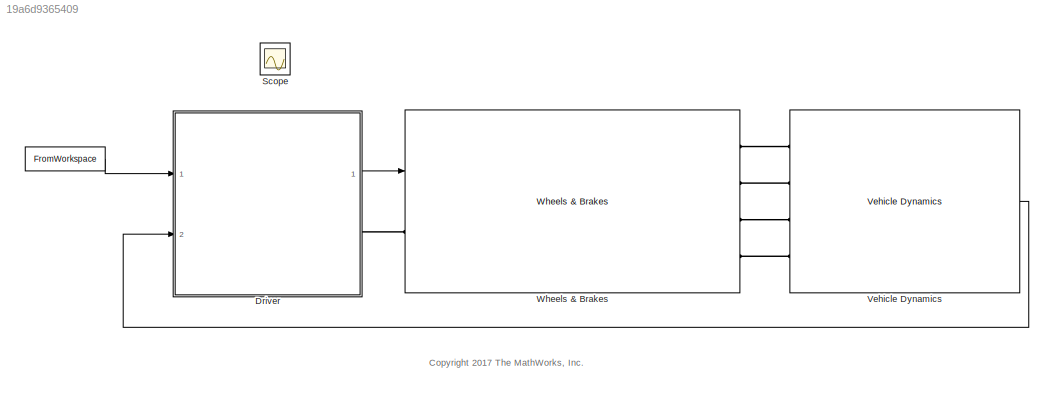
MODEL slx_19a6d9365409
KIND model
CONFIG AbsTol = auto
CONFIG EnableMultiTasking = off
CONFIG FixedStep = auto
CONFIG MaxStep = auto
CONFIG MinStep = auto
CONFIG RelTol = 1e-3
CONFIG SampleTimeConstraint = Unconstrained
CONFIG Solver = ode23tb
CONFIG SolverName = ode23tb
CONFIG StartTime = 0.0
CONFIG StopTime = TimeUS06
WORKSPACE source: MAT-file member
WORKSPACE Af = 4
BLOCK [FromWorkspace]  
  SampleTime = 0
  Tag = DriveCycle
  VariableName = DrCycles.US06
  ZeroCross = on
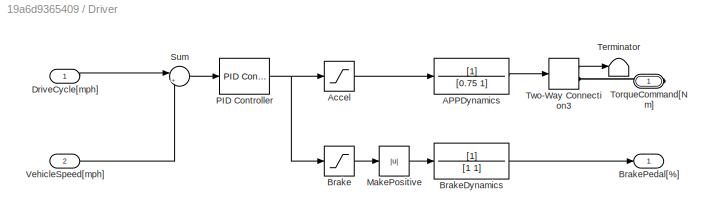
BLOCK [SubSystem] Driver
  Ports = [2, 1, 0, 0, 0, 0, 1]
  RequestExecContextInheritance = off
BLOCK [Inport] Driver/ DriveCycle[mph]
  IconDisplay = Port number
BLOCK [TransferFcn] Driver/APPDynamics
  Denominator = [0.75 1]
BLOCK [Saturate] Driver/Accel
  InputPortMap = u0
  LowerLimit = 0
  Ports = [1, 1]
  UpperLimit = inf
BLOCK [Saturate] Driver/Brake
  InputPortMap = u0
  LowerLimit = -100
  Ports = [1, 1]
  UpperLimit = 0
BLOCK [TransferFcn] Driver/BrakeDynamics
  Denominator = [1 1]
BLOCK [Outport] Driver/BrakePedal[%]
  IconDisplay = Port number
BLOCK [Abs] Driver/MakePositive
  SaturateOnIntegerOverflow = off
BLOCK [Reference] Driver/PID Controller  REF=simulink/Continuous/PID Controller
  Ports = [1, 1]
  SourceBlock = simulink/Continuous/PID Controller
  SourceProductBaseCode = SL
  SourceProductName = Simulink
  SourceType = PID 1dof
BLOCK [Sum] Driver/Sum
  IconShape = round
  InputSameDT = off
  Inputs = |+-
  OutDataTypeStr = Inherit: Inherit via internal rule
  Ports = [2, 1]
  SaturateOnIntegerOverflow = off
BLOCK [Terminator] Driver/Terminator
BLOCK [PMIOPort] Driver/TorqueCommand[Nm]
  Side = Right
BLOCK [TwoWayConnection] Driver/Two-Way Connection3
  Ports = [1, 1, 0, 0, 0, 0, 1]
BLOCK [Inport] Driver/VehicleSpeed[mph]
  IconDisplay = Port number
  Port = 2
BLOCK [Scope] Scope
  Floating = off
  IOType = viewer
  NumInputPorts = 1
  Ports = []
  ScopeSpecificationString = Simulink.scopes.TimeScopeBlockCfg('CurrentConfiguration', extmgr.ConfigurationSet(extmgr.Configuration('Core','General UI',true),extmgr.Configuration('Core','Source UI',true),extmgr.Configuration('Sources','WiredSimulink',true),extmgr.Configuration('Visuals','Time Domain',true,'SerializedDisplays',{struct('MinYLimReal','-10.02605','MaxYLimReal','90.23443','YLabelReal','','MinYLimMag','0.00000','Ma...<+1422ch>
BLOCK [Reference] Vehicle Dynamics  REF=Wheels_Driver_VehDyn_Lib/Vehicle Dynamics
  Ports = [0, 1, 0, 0, 0, 4]
  SourceBlock = Wheels_Driver_VehDyn_Lib/Vehicle Dynamics
  SourceType = SubSystem
BLOCK [Reference] Wheels & Brakes  REF=Wheels_Driver_VehDyn_Lib/Wheels & Brakes
  Ports = [1, 0, 0, 0, 0, 1, 4]
  SourceBlock = Wheels_Driver_VehDyn_Lib/Wheels & Brakes
  SourceType = SubSystem
ANNOTATION (root): <copyright redacted>
LINE  :1 -> Driver:1
LINE Driver/ DriveCycle[mph]:1 -> Driver/Sum:1
LINE Driver/APPDynamics:1 -> Driver/Two-Way Connection3:1
LINE Driver/Accel:1 -> Driver/APPDynamics:1
LINE Driver/Brake:1 -> Driver/MakePositive:1
LINE Driver/BrakeDynamics:1 -> Driver/BrakePedal[%]:1
LINE Driver/MakePositive:1 -> Driver/BrakeDynamics:1
NET Driver/PID Controller:1 -> Driver/Accel:1, Driver/Brake:1
LINE Driver/Sum:1 -> Driver/PID Controller:1
LINE Driver/Two-Way Connection3:1 -> Driver/Terminator:1
LINE Driver/VehicleSpeed[mph]:1 -> Driver/Sum:2
LINE Driver:1 -> Wheels & Brakes:1
LINE Vehicle Dynamics:1 -> Driver:2
PLINE Driver/TorqueCommand[Nm]:RConn1 -- Driver/Two-Way Connection3:RConn1
PLINE Driver:RConn1 -- Wheels & Brakes:LConn1
PLINE Vehicle Dynamics:LConn1 -- Wheels & Brakes:RConn1
PLINE Vehicle Dynamics:LConn2 -- Wheels & Brakes:RConn2
PLINE Vehicle Dynamics:LConn3 -- Wheels & Brakes:RConn3
PLINE Vehicle Dynamics:LConn4 -- Wheels & Brakes:RConn4
note: NET lines group one-source signal fan-out (src -> all destinations, sorted); 1:1 wires keep LINE
